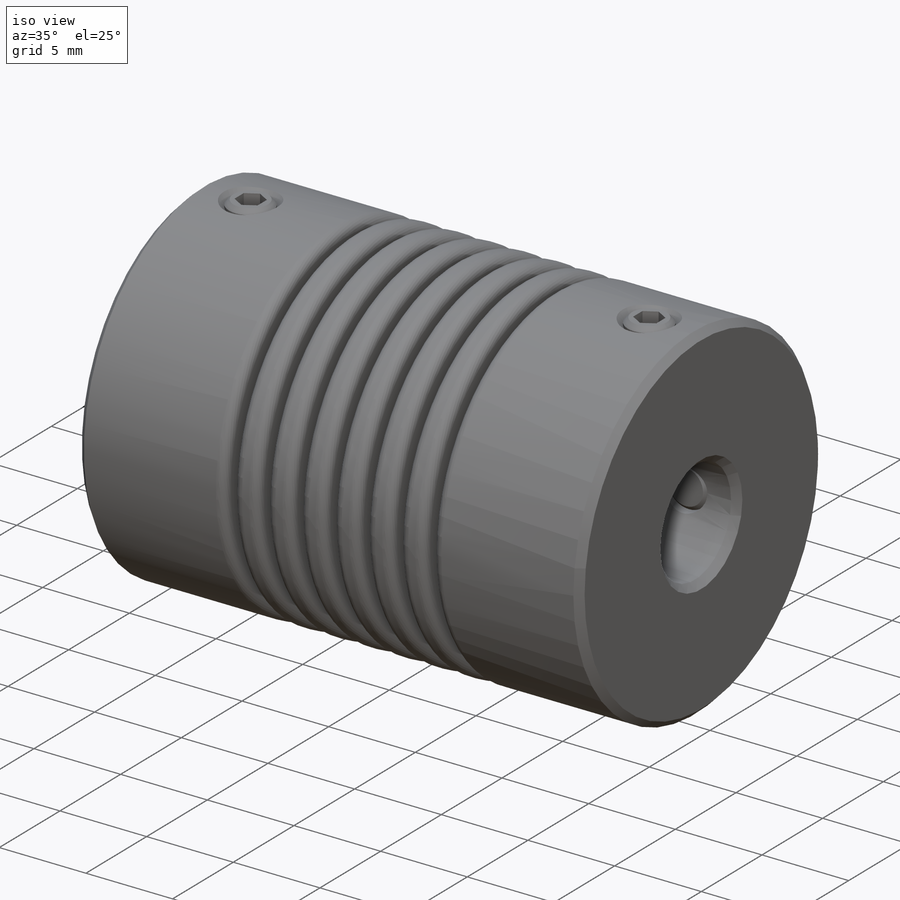
[diagram: iso view]
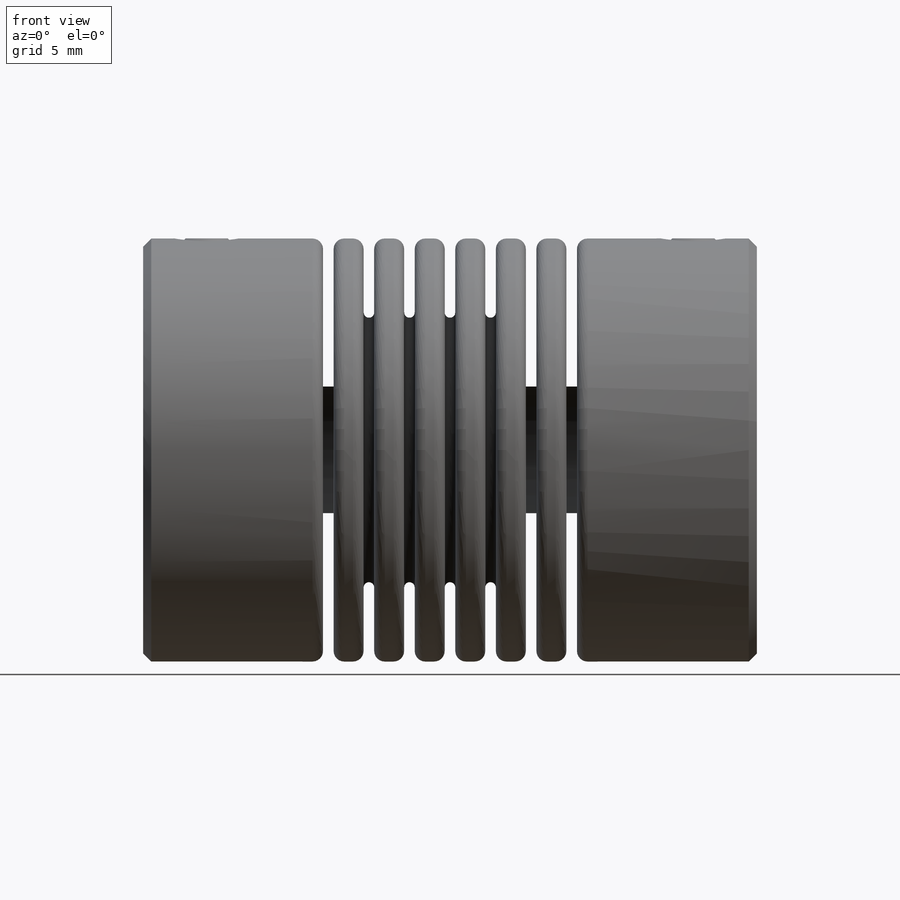
[diagram: front view]
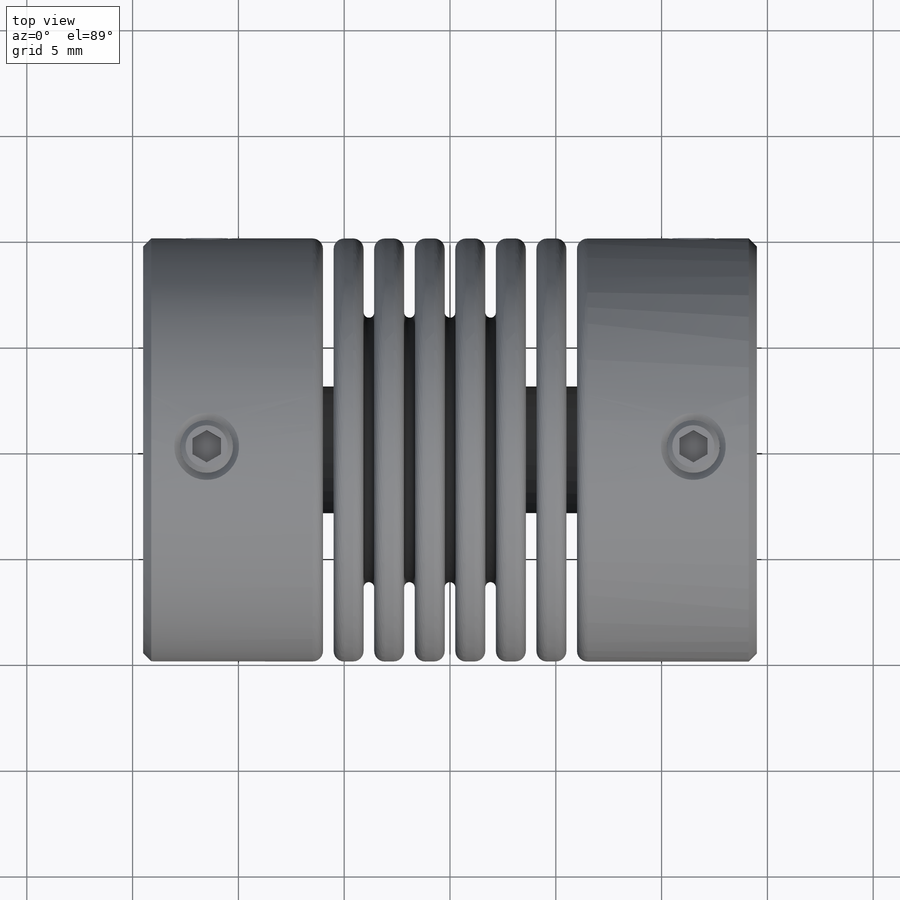
[diagram: top view]
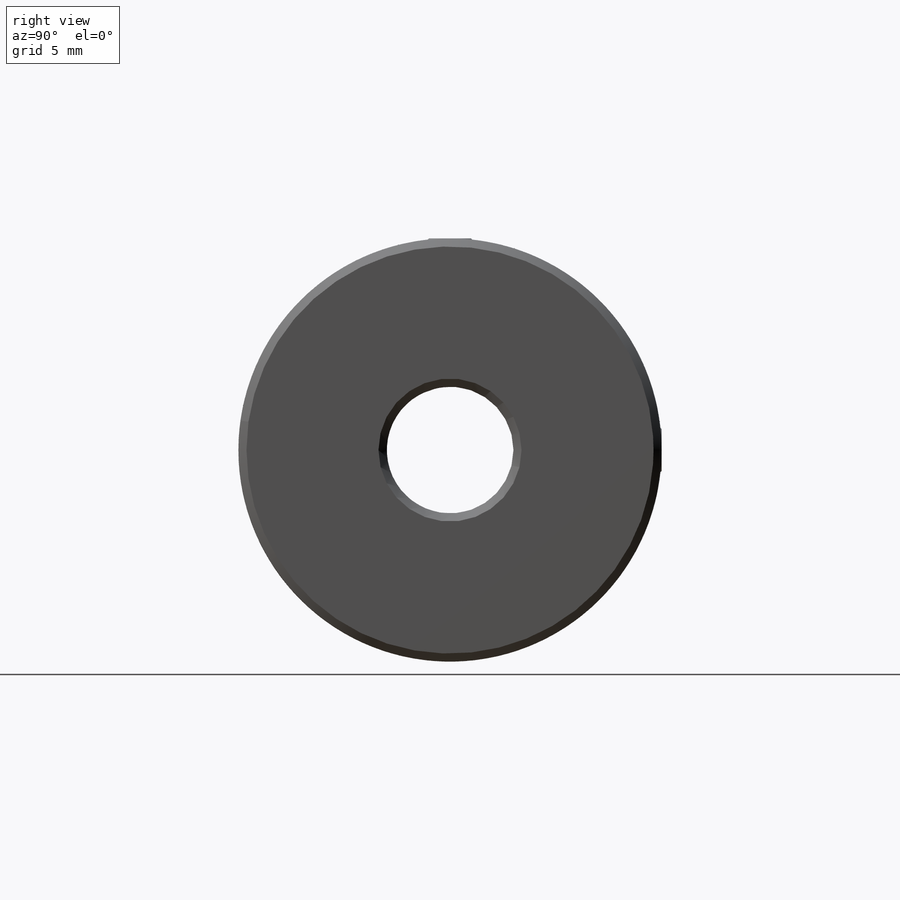
[diagram: right view]
SOLIDWORKS PART (.sldprt)
format: sldprt  version: not decoded by parser v0  size: 795,136 bytes
history: native  units: mm
features: sketch x8, cut_extrude x3, thread x2, chamfer x2, pattern_circular x2, mirror x2, fillet x2, material x1, extrude x1, hole x1, revolve x1, cut_revolve x1 + 1 further entry (+17 scaffold rows collapsed)
feature tree (44):
  scaffold x17  (default folders/planes/origin — collapsed)
  material  "Material <not specified>"
  "Design Table"
  sketch  "Sketch1"  dims[dim D=20.0mm]
  extrude  "Boss-Extrude1"  Depth=29mm dim L=29mm
  sketch  "Sketch2"  dims[dim d2=6.0mm]
  cut_extrude  "Cut-Extrude1"  [1 undecoded]
  hole  "Thread M"  Diameter=2.5mm Depth=10mm
  sketch  "Sketch4"  dims[dim F=3.0mm D2=2.6mm]
  sketch  "Sketch3"  dims[hole-wizard template sketch: 60 standard entries collapsed; hole parameters kept: c18.Thru Tap Drill Depth=10.0mm]
  thread  "Hole Thread1"  Diameter=3mm  [1 undecoded]
  thread  "Hole Thread2"  Diameter=3mm  [1 undecoded]
  chamfer  "Chamfer1"  Distance=0.381mm Angle=45deg
  sketch  "Sketch5"
  cut_extrude  "Cut-Extrude2"  Depth=2.54mm
  sketch  "Sketch6"
  revolve  "Revolve1"  Angle=360deg
  chamfer  "Chamfer2"  Distance=0.254mm Angle=45deg
  sketch  "Sketch7"  dims[hex=~0.285134mm D1=0.996mm]
  cut_extrude  "Cut-Extrude3"  Depth=1.27mm
  pattern_circular  "CirPattern1"  Count=2 Angle=90deg
  mirror  "Mirror1"
  pattern_circular  "CirPattern2"  Count=2 Angle=90deg
  sketch  "Sketch8"  dims[c1.D2=0.5mm c1.D4=1.0mm c1.Dim L1=8.5mm c1.D5=0.5mm c1.D1=0.5mm c2.Dim L1=8.5mm c2.D2=2.0mm c2.Dim E=12.5mm c3.Dim L1=8.5mm c3.D2=~134.481811deg c4.D2=4.0]
  cut_revolve  "Cut-Revolve1"  Angle=360deg
  mirror  "Mirror2"
  fillet  "Fillet1"  Radius=0.5mm
  fillet  "Fillet2"  Radius=0.25mm
decode coverage: 20 of 25 modeling features carry decoded parameters; 1 rows unclassified (native names shown)
note: ~ marks probable driven/reference dimensions
note: 3 parameter values undecoded
note: suppression state not decoded; provenance and decode notes live in map.json
